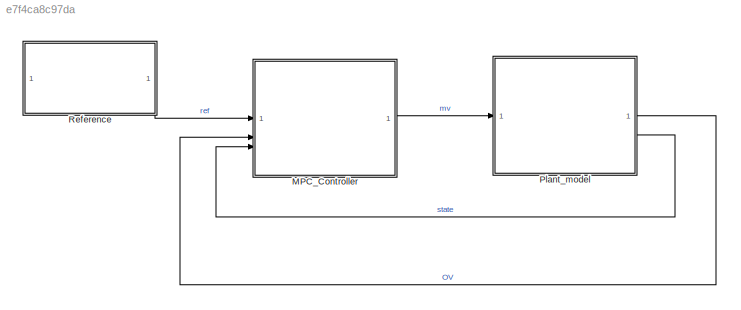
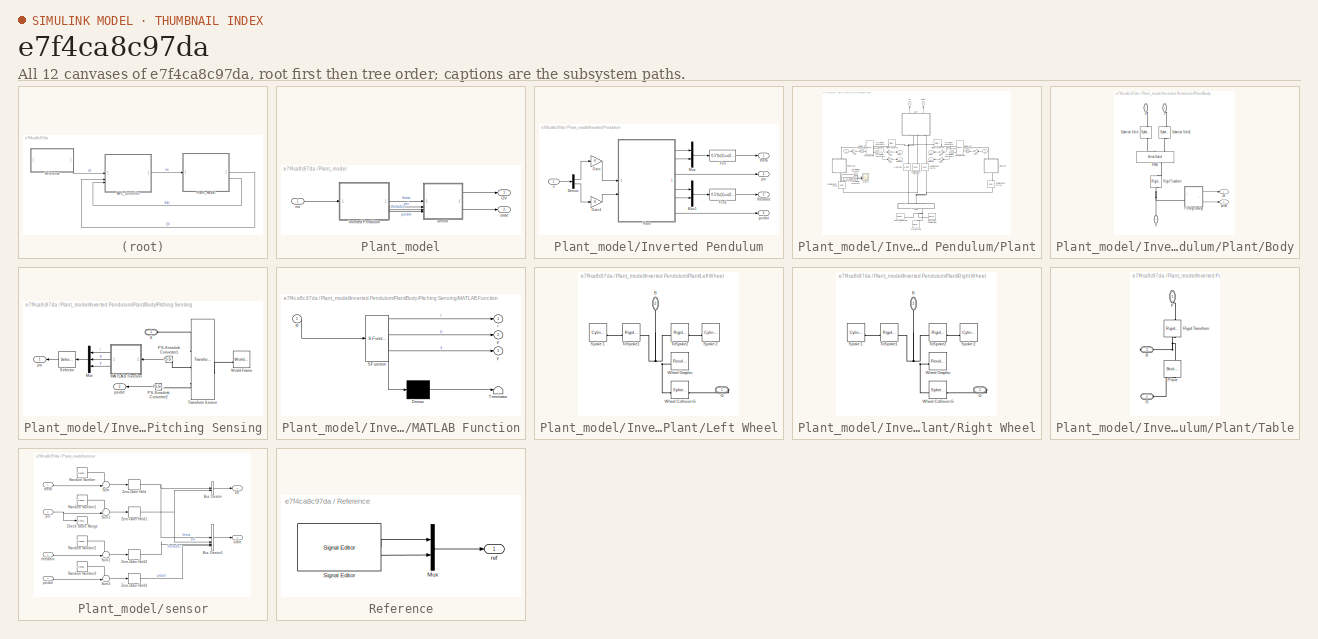
[diagram: thumbnail index - all 12 canvases of the model, root first then tree order]
MODEL slx_e7f4ca8c97da
KIND model
BLOCK [ModelReference] MPC_Controller
  ModelNameDialog = InvertedPendulumRobot_MPC_Controller.slx
  ModelReferenceVersion = 8.0
BLOCK [SubSystem] Plant_model
BLOCK [SubSystem] Plant_model/Inverted Pendulum
  AncestorBlock = InvertedPendulumRobot_plantlib/Inverted Pendulum
BLOCK [Demux] Plant_model/Inverted Pendulum/Demux
  Outputs = 2
BLOCK [Fcn] Plant_model/Inverted Pendulum/Fcn
  Expr = 0.5*(u(1)+u(2))
BLOCK [Fcn] Plant_model/Inverted Pendulum/Fcn1
  Expr = 0.5*(u(1)+u(2))
BLOCK [Gain] Plant_model/Inverted Pendulum/Gain
  Gain = K
BLOCK [Gain] Plant_model/Inverted Pendulum/Gain1
  Gain = K
BLOCK [Mux] Plant_model/Inverted Pendulum/Mux
  DisplayOption = bar
  Inputs = 2
BLOCK [Mux] Plant_model/Inverted Pendulum/Mux1
  DisplayOption = bar
  Inputs = 2
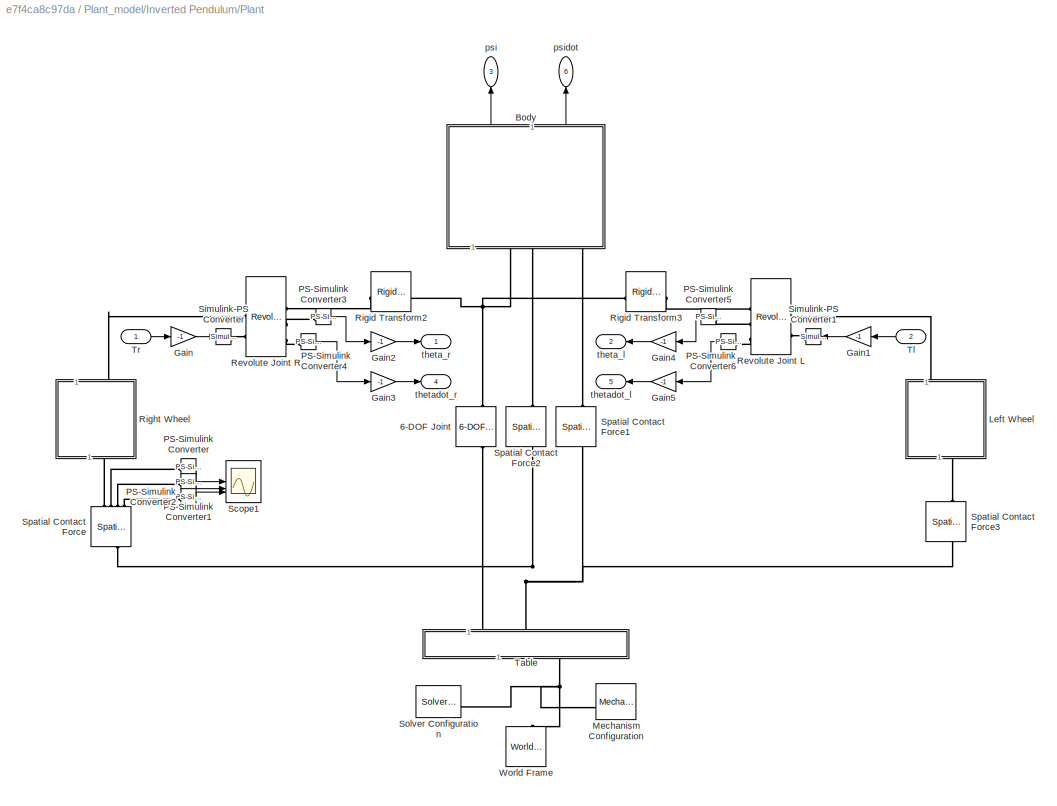
BLOCK [SubSystem] Plant_model/Inverted Pendulum/Plant
BLOCK [Reference] Plant_model/Inverted Pendulum/Plant/6-DOF Joint  REF=sm_lib/Joints/6-DOF Joint
  NameLocation = right
  SourceBlock = sm_lib/Joints/6-DOF Joint
  SourceType = 6-DOF Joint
BLOCK [SubSystem] Plant_model/Inverted Pendulum/Plant/Body
  NameLocation = right
BLOCK [PMIOPort] Plant_model/Inverted Pendulum/Plant/Body/B
  NameLocation = right
  Side = Left
BLOCK [Reference] Plant_model/Inverted Pendulum/Plant/Body/Body1  REF=sm_lib/Body Elements/Brick Solid
  NameLocation = left
  SourceBlock = sm_lib/Body Elements/Brick Solid
  SourceType = Brick Solid
BLOCK [PMIOPort] Plant_model/Inverted Pendulum/Plant/Body/L
  NameLocation = right
  Port = 3
  Side = Left
BLOCK [SubSystem] Plant_model/Inverted Pendulum/Plant/Body/Pitching Sensing
BLOCK [SubSystem] Plant_model/Inverted Pendulum/Plant/Body/Pitching Sensing/MATLAB Function
  ErrorFcn = Stateflow.Translate.translate
  NameLocation = top
  PermitHierarchicalResolution = ExplicitOnly
  SFBlockType = MATLAB Function
  TreatAsAtomicUnit = on
BLOCK [Demux] Plant_model/Inverted Pendulum/Plant/Body/Pitching Sensing/MATLAB Function/ Demux 
  Outputs = 1
BLOCK [S-Function] Plant_model/Inverted Pendulum/Plant/Body/Pitching Sensing/MATLAB Function/ SFunction 
  EnableBusSupport = off
  FunctionName = sf_sfun
  PortCounts = [1 4]
  SFcnIsStateOwnerBlock = off
  SFunctionDeploymentMode = off
  Tag = Stateflow S-Function 3
BLOCK [Terminator] Plant_model/Inverted Pendulum/Plant/Body/Pitching Sensing/MATLAB Function/ Terminator 
BLOCK [Inport] Plant_model/Inverted Pendulum/Plant/Body/Pitching Sensing/MATLAB Function/R
BLOCK [Outport] Plant_model/Inverted Pendulum/Plant/Body/Pitching Sensing/MATLAB Function/p
  Port = 2
BLOCK [Outport] Plant_model/Inverted Pendulum/Plant/Body/Pitching Sensing/MATLAB Function/r
BLOCK [Outport] Plant_model/Inverted Pendulum/Plant/Body/Pitching Sensing/MATLAB Function/y
  Port = 3
BLOCK [Mux] Plant_model/Inverted Pendulum/Plant/Body/Pitching Sensing/Mux
  DisplayOption = bar
  Inputs = 3
  NameLocation = top
BLOCK [Reference] Plant_model/Inverted Pendulum/Plant/Body/Pitching Sensing/PS-Simulink Converter1  REF=nesl_utility/PS-Simulink
Converter
  NameLocation = top
  SourceBlock = nesl_utility/PS-Simulink\nConverter
  SourceType = PS-Simulink\nConverter
BLOCK [Reference] Plant_model/Inverted Pendulum/Plant/Body/Pitching Sensing/PS-Simulink Converter2  REF=nesl_utility/PS-Simulink
Converter
  NameLocation = top
  SourceBlock = nesl_utility/PS-Simulink\nConverter
  SourceType = PS-Simulink\nConverter
BLOCK [PMIOPort] Plant_model/Inverted Pendulum/Plant/Body/Pitching Sensing/S
  Side = Left
BLOCK [Selector] Plant_model/Inverted Pendulum/Plant/Body/Pitching Sensing/Selector
  IndexOptions = Index vector (dialog)
  Indices = 2
  InputPortWidth = 3
  NameLocation = top
  OutputSizes = 1
BLOCK [Reference] Plant_model/Inverted Pendulum/Plant/Body/Pitching Sensing/Transform Sensor  REF=sm_lib/Frames and
Transforms/Transform
Sensor
  SourceBlock = sm_lib/Frames and\nTransforms/Transform\nSensor
  SourceType = Transform\nSensor
BLOCK [Reference] Plant_model/Inverted Pendulum/Plant/Body/Pitching Sensing/World Frame  REF=sm_lib/Frames and
Transforms/World Frame
  SourceBlock = sm_lib/Frames and\nTransforms/World Frame
  SourceType = World Frame
BLOCK [Outport] Plant_model/Inverted Pendulum/Plant/Body/Pitching Sensing/psi
  NameLocation = top
BLOCK [Outport] Plant_model/Inverted Pendulum/Plant/Body/Pitching Sensing/psidot
  Port = 2
BLOCK [PMIOPort] Plant_model/Inverted Pendulum/Plant/Body/R
  NameLocation = left
  Port = 2
  Side = Left
BLOCK [Reference] Plant_model/Inverted Pendulum/Plant/Body/Rigid Transform  REF=sm_lib/Frames and
Transforms/Rigid
Transform
  NameLocation = right
  SourceBlock = sm_lib/Frames and\nTransforms/Rigid\nTransform
  SourceType = Rigid\nTransform
BLOCK [Reference] Plant_model/Inverted Pendulum/Plant/Body/Spherical Solid  REF=sm_lib/Body Elements/Spherical Solid
  NameLocation = left
  SourceBlock = sm_lib/Body Elements/Spherical Solid
  SourceType = Spherical Solid
BLOCK [Reference] Plant_model/Inverted Pendulum/Plant/Body/Spherical Solid1  REF=sm_lib/Body Elements/Spherical Solid
  NameLocation = left
  SourceBlock = sm_lib/Body Elements/Spherical Solid
  SourceType = Spherical Solid
BLOCK [Outport] Plant_model/Inverted Pendulum/Plant/Body/psi
BLOCK [Outport] Plant_model/Inverted Pendulum/Plant/Body/psidot
  Port = 2
BLOCK [Gain] Plant_model/Inverted Pendulum/Plant/Gain
  Gain = -1
BLOCK [Gain] Plant_model/Inverted Pendulum/Plant/Gain1
  Gain = -1
BLOCK [Gain] Plant_model/Inverted Pendulum/Plant/Gain2
  Gain = -1
BLOCK [Gain] Plant_model/Inverted Pendulum/Plant/Gain3
  Gain = -1
BLOCK [Gain] Plant_model/Inverted Pendulum/Plant/Gain4
  Gain = -1
BLOCK [Gain] Plant_model/Inverted Pendulum/Plant/Gain5
  Gain = -1
BLOCK [SubSystem] Plant_model/Inverted Pendulum/Plant/Left Wheel
  NameLocation = right
BLOCK [PMIOPort] Plant_model/Inverted Pendulum/Plant/Left Wheel/B
  NameLocation = left
  Port = 2
  Side = Left
BLOCK [PMIOPort] Plant_model/Inverted Pendulum/Plant/Left Wheel/G
  NameLocation = top
  Side = Right
BLOCK [Reference] Plant_model/Inverted Pendulum/Plant/Left Wheel/Spoke 1  REF=sm_lib/Body Elements/Cylindrical Solid
  NameLocation = top
  SourceBlock = sm_lib/Body Elements/Cylindrical Solid
  SourceType = Cylindrical Solid
BLOCK [Reference] Plant_model/Inverted Pendulum/Plant/Left Wheel/Spoke 2  REF=sm_lib/Body Elements/Cylindrical Solid
  NameLocation = top
  SourceBlock = sm_lib/Body Elements/Cylindrical Solid
  SourceType = Cylindrical Solid
BLOCK [Reference] Plant_model/Inverted Pendulum/Plant/Left Wheel/ToSpoke1  REF=sm_lib/Frames and
Transforms/Rigid
Transform
  NameLocation = top
  SourceBlock = sm_lib/Frames and\nTransforms/Rigid\nTransform
  SourceType = Rigid\nTransform
BLOCK [Reference] Plant_model/Inverted Pendulum/Plant/Left Wheel/ToSpoke2  REF=sm_lib/Frames and
Transforms/Rigid
Transform
  NameLocation = top
  SourceBlock = sm_lib/Frames and\nTransforms/Rigid\nTransform
  SourceType = Rigid\nTransform
BLOCK [Reference] Plant_model/Inverted Pendulum/Plant/Left Wheel/Wheel Collision G  REF=sm_lib/Body Elements/Spherical Solid
  SourceBlock = sm_lib/Body Elements/Spherical Solid
  SourceType = Spherical Solid
BLOCK [Reference] Plant_model/Inverted Pendulum/Plant/Left Wheel/Wheel Graphic  REF=sm_lib/Body Elements/Revolved Solid
  NameLocation = top
  SourceBlock = sm_lib/Body Elements/Revolved Solid
  SourceType = Revolved Solid
BLOCK [Reference] Plant_model/Inverted Pendulum/Plant/Mechanism Configuration  REF=sm_lib/Utilities/Mechanism
Configuration
  SourceBlock = sm_lib/Utilities/Mechanism\nConfiguration
  SourceType = Mechanism\nConfiguration
BLOCK [Reference] Plant_model/Inverted Pendulum/Plant/PS-Simulink Converter  REF=nesl_utility/PS-Simulink
Converter
  SourceBlock = nesl_utility/PS-Simulink\nConverter
  SourceType = PS-Simulink\nConverter
BLOCK [Reference] Plant_model/Inverted Pendulum/Plant/PS-Simulink Converter1  REF=nesl_utility/PS-Simulink
Converter
  SourceBlock = nesl_utility/PS-Simulink\nConverter
  SourceType = PS-Simulink\nConverter
BLOCK [Reference] Plant_model/Inverted Pendulum/Plant/PS-Simulink Converter2  REF=nesl_utility/PS-Simulink
Converter
  SourceBlock = nesl_utility/PS-Simulink\nConverter
  SourceType = PS-Simulink\nConverter
BLOCK [Reference] Plant_model/Inverted Pendulum/Plant/PS-Simulink Converter3  REF=nesl_utility/PS-Simulink
Converter
  SourceBlock = nesl_utility/PS-Simulink\nConverter
  SourceType = PS-Simulink\nConverter
BLOCK [Reference] Plant_model/Inverted Pendulum/Plant/PS-Simulink Converter4  REF=nesl_utility/PS-Simulink
Converter
  SourceBlock = nesl_utility/PS-Simulink\nConverter
  SourceType = PS-Simulink\nConverter
BLOCK [Reference] Plant_model/Inverted Pendulum/Plant/PS-Simulink Converter5  REF=nesl_utility/PS-Simulink
Converter
  SourceBlock = nesl_utility/PS-Simulink\nConverter
  SourceType = PS-Simulink\nConverter
BLOCK [Reference] Plant_model/Inverted Pendulum/Plant/PS-Simulink Converter6  REF=nesl_utility/PS-Simulink
Converter
  SourceBlock = nesl_utility/PS-Simulink\nConverter
  SourceType = PS-Simulink\nConverter
BLOCK [Reference] Plant_model/Inverted Pendulum/Plant/Revolute Joint L  REF=sm_lib/Joints/Revolute Joint
  SourceBlock = sm_lib/Joints/Revolute Joint
  SourceType = Revolute Joint
BLOCK [Reference] Plant_model/Inverted Pendulum/Plant/Revolute Joint R  REF=sm_lib/Joints/Revolute Joint
  SourceBlock = sm_lib/Joints/Revolute Joint
  SourceType = Revolute Joint
BLOCK [SubSystem] Plant_model/Inverted Pendulum/Plant/Right Wheel
  NameLocation = right
BLOCK [PMIOPort] Plant_model/Inverted Pendulum/Plant/Right Wheel/B
  NameLocation = left
  Port = 2
  Side = Left
BLOCK [PMIOPort] Plant_model/Inverted Pendulum/Plant/Right Wheel/G
  NameLocation = top
  Side = Right
BLOCK [Reference] Plant_model/Inverted Pendulum/Plant/Right Wheel/Spoke 1  REF=sm_lib/Body Elements/Cylindrical Solid
  NameLocation = top
  SourceBlock = sm_lib/Body Elements/Cylindrical Solid
  SourceType = Cylindrical Solid
BLOCK [Reference] Plant_model/Inverted Pendulum/Plant/Right Wheel/Spoke 2  REF=sm_lib/Body Elements/Cylindrical Solid
  NameLocation = top
  SourceBlock = sm_lib/Body Elements/Cylindrical Solid
  SourceType = Cylindrical Solid
BLOCK [Reference] Plant_model/Inverted Pendulum/Plant/Right Wheel/ToSpoke1  REF=sm_lib/Frames and
Transforms/Rigid
Transform
  NameLocation = top
  SourceBlock = sm_lib/Frames and\nTransforms/Rigid\nTransform
  SourceType = Rigid\nTransform
BLOCK [Reference] Plant_model/Inverted Pendulum/Plant/Right Wheel/ToSpoke2  REF=sm_lib/Frames and
Transforms/Rigid
Transform
  NameLocation = top
  SourceBlock = sm_lib/Frames and\nTransforms/Rigid\nTransform
  SourceType = Rigid\nTransform
BLOCK [Reference] Plant_model/Inverted Pendulum/Plant/Right Wheel/Wheel Collision G  REF=sm_lib/Body Elements/Spherical Solid
  SourceBlock = sm_lib/Body Elements/Spherical Solid
  SourceType = Spherical Solid
BLOCK [Reference] Plant_model/Inverted Pendulum/Plant/Right Wheel/Wheel Graphic  REF=sm_lib/Body Elements/Revolved Solid
  NameLocation = top
  SourceBlock = sm_lib/Body Elements/Revolved Solid
  SourceType = Revolved Solid
BLOCK [Reference] Plant_model/Inverted Pendulum/Plant/Rigid Transform2  REF=sm_lib/Frames and
Transforms/Rigid
Transform
  NameLocation = top
  SourceBlock = sm_lib/Frames and\nTransforms/Rigid\nTransform
  SourceType = Rigid\nTransform
BLOCK [Reference] Plant_model/Inverted Pendulum/Plant/Rigid Transform3  REF=sm_lib/Frames and
Transforms/Rigid
Transform
  SourceBlock = sm_lib/Frames and\nTransforms/Rigid\nTransform
  SourceType = Rigid\nTransform
BLOCK [Scope] Plant_model/Inverted Pendulum/Plant/Scope1
  Floating = off
  NumInputPorts = 3
  ScopeSpecificationString = Simulink.scopes.TimeScopeBlockCfg('CurrentConfiguration', extmgr.ConfigurationSet(extmgr.Configuration('Core','General UI',true),extmgr.Configuration('Core','Source UI',true),extmgr.Configuration('Sources','WiredSimulink',true,'DataLoggingVariableName','ScopeData5'),extmgr.Configuration('Visuals','Time Domain',true,'SerializedDisplays',{struct('MinYLimReal','-0.0002','MaxYLimReal','0.00051','YLabe...<+2855ch>
BLOCK [Reference] Plant_model/Inverted Pendulum/Plant/Simulink-PS Converter  REF=nesl_utility/Simulink-PS
Converter
  SourceBlock = nesl_utility/Simulink-PS\nConverter
  SourceType = Simulink-PS\nConverter
BLOCK [Reference] Plant_model/Inverted Pendulum/Plant/Simulink-PS Converter1  REF=nesl_utility/Simulink-PS
Converter
  SourceBlock = nesl_utility/Simulink-PS\nConverter
  SourceType = Simulink-PS\nConverter
BLOCK [Reference] Plant_model/Inverted Pendulum/Plant/Solver Configuration  REF=nesl_utility/Solver
Configuration
  SourceBlock = nesl_utility/Solver\nConfiguration
  SourceType = Solver\nConfiguration
BLOCK [Reference] Plant_model/Inverted Pendulum/Plant/Spatial Contact Force  REF=sm_lib/Forces and
Torques/Spatial
Contact Force
  NameLocation = right
  SourceBlock = sm_lib/Forces and\nTorques/Spatial\nContact Force
  SourceType = Spatial\nContact Force
BLOCK [Reference] Plant_model/Inverted Pendulum/Plant/Spatial Contact Force1  REF=sm_lib/Forces and
Torques/Spatial
Contact Force
  NameLocation = right
  SourceBlock = sm_lib/Forces and\nTorques/Spatial\nContact Force
  SourceType = Spatial\nContact Force
BLOCK [Reference] Plant_model/Inverted Pendulum/Plant/Spatial Contact Force2  REF=sm_lib/Forces and
Torques/Spatial
Contact Force
  NameLocation = right
  SourceBlock = sm_lib/Forces and\nTorques/Spatial\nContact Force
  SourceType = Spatial\nContact Force
BLOCK [Reference] Plant_model/Inverted Pendulum/Plant/Spatial Contact Force3  REF=sm_lib/Forces and
Torques/Spatial
Contact Force
  NameLocation = right
  SourceBlock = sm_lib/Forces and\nTorques/Spatial\nContact Force
  SourceType = Spatial\nContact Force
BLOCK [SubSystem] Plant_model/Inverted Pendulum/Plant/Table
  NameLocation = left
  Tag = CustomStyle
BLOCK [PMIOPort] Plant_model/Inverted Pendulum/Plant/Table/B
  NameLocation = top
  Port = 3
  Side = Right
BLOCK [PMIOPort] Plant_model/Inverted Pendulum/Plant/Table/F
  NameLocation = left
  Side = Left
BLOCK [PMIOPort] Plant_model/Inverted Pendulum/Plant/Table/G
  NameLocation = top
  Port = 2
  Side = Left
BLOCK [Reference] Plant_model/Inverted Pendulum/Plant/Table/Plane  REF=sm_lib/Body Elements/Brick Solid
  NameLocation = right
  SourceBlock = sm_lib/Body Elements/Brick Solid
  SourceType = Brick Solid
BLOCK [Reference] Plant_model/Inverted Pendulum/Plant/Table/Rigid Transform  REF=sm_lib/Frames and
Transforms/Rigid
Transform
  NameLocation = right
  SourceBlock = sm_lib/Frames and\nTransforms/Rigid\nTransform
  SourceType = Rigid\nTransform
BLOCK [Inport] Plant_model/Inverted Pendulum/Plant/Tl
  Port = 2
BLOCK [Inport] Plant_model/Inverted Pendulum/Plant/Tr
BLOCK [Reference] Plant_model/Inverted Pendulum/Plant/World Frame  REF=sm_lib/Frames and
Transforms/World Frame
  NameLocation = left
  SourceBlock = sm_lib/Frames and\nTransforms/World Frame
  SourceType = World Frame
BLOCK [Outport] Plant_model/Inverted Pendulum/Plant/psi
  NameLocation = right
  Port = 3
BLOCK [Outport] Plant_model/Inverted Pendulum/Plant/psidot
  NameLocation = right
  Port = 6
BLOCK [Outport] Plant_model/Inverted Pendulum/Plant/theta_l
  Port = 2
BLOCK [Outport] Plant_model/Inverted Pendulum/Plant/theta_r
BLOCK [Outport] Plant_model/Inverted Pendulum/Plant/thetadot_l
  Port = 5
BLOCK [Outport] Plant_model/Inverted Pendulum/Plant/thetadot_r
  Port = 4
BLOCK [Outport] Plant_model/Inverted Pendulum/psi
  Port = 2
BLOCK [Outport] Plant_model/Inverted Pendulum/psidot
  Port = 4
BLOCK [Outport] Plant_model/Inverted Pendulum/theta
BLOCK [Outport] Plant_model/Inverted Pendulum/thetadot
  Port = 3
BLOCK [Inport] Plant_model/Inverted Pendulum/u
BLOCK [Outport] Plant_model/OV
BLOCK [Inport] Plant_model/mv
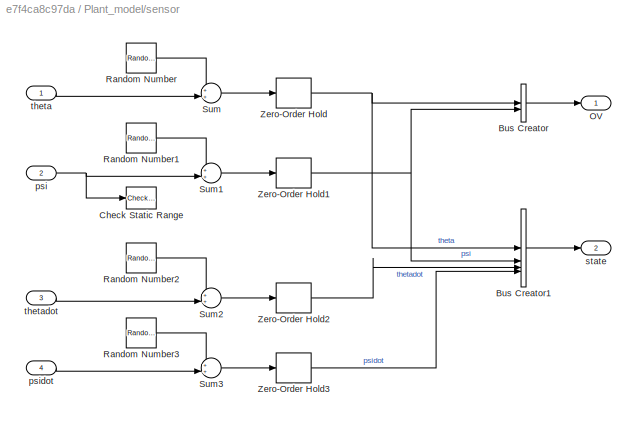
BLOCK [SubSystem] Plant_model/sensor
BLOCK [BusCreator] Plant_model/sensor/Bus Creator
  DisplayOption = bar
  InheritFromInputs = on
  Inputs = 2
BLOCK [BusCreator] Plant_model/sensor/Bus Creator1
  DisplayOption = bar
  InheritFromInputs = on
  Inputs = 4
BLOCK [Reference] Plant_model/sensor/Check Static Range  REF=simulink/Model
Verification/Check 
Static Range
  Description = -pi/2+0.01*pi/180 <= u <= pi/2-0.01*pi/180
  SourceBlock = simulink/Model\nVerification/Check \nStatic Range
  SourceType = Checks_SRange
BLOCK [Outport] Plant_model/sensor/OV
BLOCK [RandomNumber] Plant_model/sensor/Random Number
  SampleTime = 0
  Variance = 1e-5
BLOCK [RandomNumber] Plant_model/sensor/Random Number1
  SampleTime = 0
  Seed = 1
  Variance = 1e-5
BLOCK [RandomNumber] Plant_model/sensor/Random Number2
  SampleTime = 0
  Seed = 2
  Variance = 1e-5
BLOCK [RandomNumber] Plant_model/sensor/Random Number3
  SampleTime = 0
  Seed = 3
  Variance = 1e-5
BLOCK [Sum] Plant_model/sensor/Sum
  Inputs = ++|
BLOCK [Sum] Plant_model/sensor/Sum1
  Inputs = ++|
BLOCK [Sum] Plant_model/sensor/Sum2
  Inputs = ++|
BLOCK [Sum] Plant_model/sensor/Sum3
  Inputs = ++|
BLOCK [ZeroOrderHold] Plant_model/sensor/Zero-Order Hold
  SampleTime = TimeStep
BLOCK [ZeroOrderHold] Plant_model/sensor/Zero-Order Hold1
  SampleTime = TimeStep
BLOCK [ZeroOrderHold] Plant_model/sensor/Zero-Order Hold2
  SampleTime = TimeStep
BLOCK [ZeroOrderHold] Plant_model/sensor/Zero-Order Hold3
  SampleTime = TimeStep
BLOCK [Inport] Plant_model/sensor/psi
  Port = 2
BLOCK [Inport] Plant_model/sensor/psidot
  Port = 4
BLOCK [Outport] Plant_model/sensor/state
  Port = 2
BLOCK [Inport] Plant_model/sensor/theta
BLOCK [Inport] Plant_model/sensor/thetadot
  Port = 3
BLOCK [Outport] Plant_model/state
  Port = 2
BLOCK [SubSystem] Reference
BLOCK [Mux] Reference/Mux
  DisplayOption = bar
  Inputs = 2
BLOCK [Reference] Reference/Signal Editor  REF=SignalEditorBlockLib/Signal Editor
  SourceBlock = SignalEditorBlockLib/Signal Editor
  SourceType = SignalEditor
  UserDataPersistent = on
BLOCK [Outport] Reference/ref
LINE MPC_Controller:1 -> Plant_model:1
LINE Plant_model/Inverted Pendulum:1 -> Plant_model/sensor:1
LINE Plant_model/Inverted Pendulum:2 -> Plant_model/sensor:2
LINE Plant_model/Inverted Pendulum:3 -> Plant_model/sensor:3
LINE Plant_model/Inverted Pendulum:4 -> Plant_model/sensor:4
LINE Plant_model/mv:1 -> Plant_model/Inverted Pendulum:1
LINE Plant_model/sensor/Bus Creator1:1 -> Plant_model/sensor/state:1
LINE Plant_model/sensor/Bus Creator:1 -> Plant_model/sensor/OV:1
LINE Plant_model/sensor/Random Number1:1 -> Plant_model/sensor/Sum1:1
LINE Plant_model/sensor/Random Number2:1 -> Plant_model/sensor/Sum2:1
LINE Plant_model/sensor/Random Number3:1 -> Plant_model/sensor/Sum3:1
LINE Plant_model/sensor/Random Number:1 -> Plant_model/sensor/Sum:1
LINE Plant_model/sensor/Sum1:1 -> Plant_model/sensor/Zero-Order Hold1:1
LINE Plant_model/sensor/Sum2:1 -> Plant_model/sensor/Zero-Order Hold2:1
LINE Plant_model/sensor/Sum3:1 -> Plant_model/sensor/Zero-Order Hold3:1
LINE Plant_model/sensor/Sum:1 -> Plant_model/sensor/Zero-Order Hold:1
NET Plant_model/sensor/Zero-Order Hold1:1 -> Plant_model/sensor/Bus Creator1:2, Plant_model/sensor/Bus Creator:2
LINE Plant_model/sensor/Zero-Order Hold2:1 -> Plant_model/sensor/Bus Creator1:3
LINE Plant_model/sensor/Zero-Order Hold3:1 -> Plant_model/sensor/Bus Creator1:4
NET Plant_model/sensor/Zero-Order Hold:1 -> Plant_model/sensor/Bus Creator1:1, Plant_model/sensor/Bus Creator:1
NET Plant_model/sensor/psi:1 -> Plant_model/sensor/Check Static Range:1, Plant_model/sensor/Sum1:2
LINE Plant_model/sensor/psidot:1 -> Plant_model/sensor/Sum3:2
LINE Plant_model/sensor/theta:1 -> Plant_model/sensor/Sum:2
LINE Plant_model/sensor/thetadot:1 -> Plant_model/sensor/Sum2:2
LINE Plant_model/sensor:1 -> Plant_model/OV:1
LINE Plant_model/sensor:2 -> Plant_model/state:1
LINE Plant_model:1 -> MPC_Controller:2
LINE Plant_model:2 -> MPC_Controller:3
LINE Reference/Mux:1 -> Reference/ref:1
LINE Reference/Signal Editor:1 -> Reference/Mux:1
LINE Reference/Signal Editor:2 -> Reference/Mux:2
LINE Reference:1 -> MPC_Controller:1
note: NET lines group one-source signal fan-out (src -> all destinations, sorted); 1:1 wires keep LINE
CHART Plant_model/Inverted Pendulum/Plant/Body/Pitching Sensing/MATLAB Function states=1 transitions=1
  STATE_LABEL 'eML_blk_kernel()'
  STATE_LABEL 'SCRIPT:\nfunction [r,p,y] = fcn(R)\n%Rotation matrix to Euler angle\ny = atan2(R(2,1),R(1,1));\np = atan2(-R(3,1),sqrt(R(3,2)^2+R(3,3)^2));\nr = atan2(R(3,2),R(3,3));\n\n'
CHART  states=0 transitions=0
